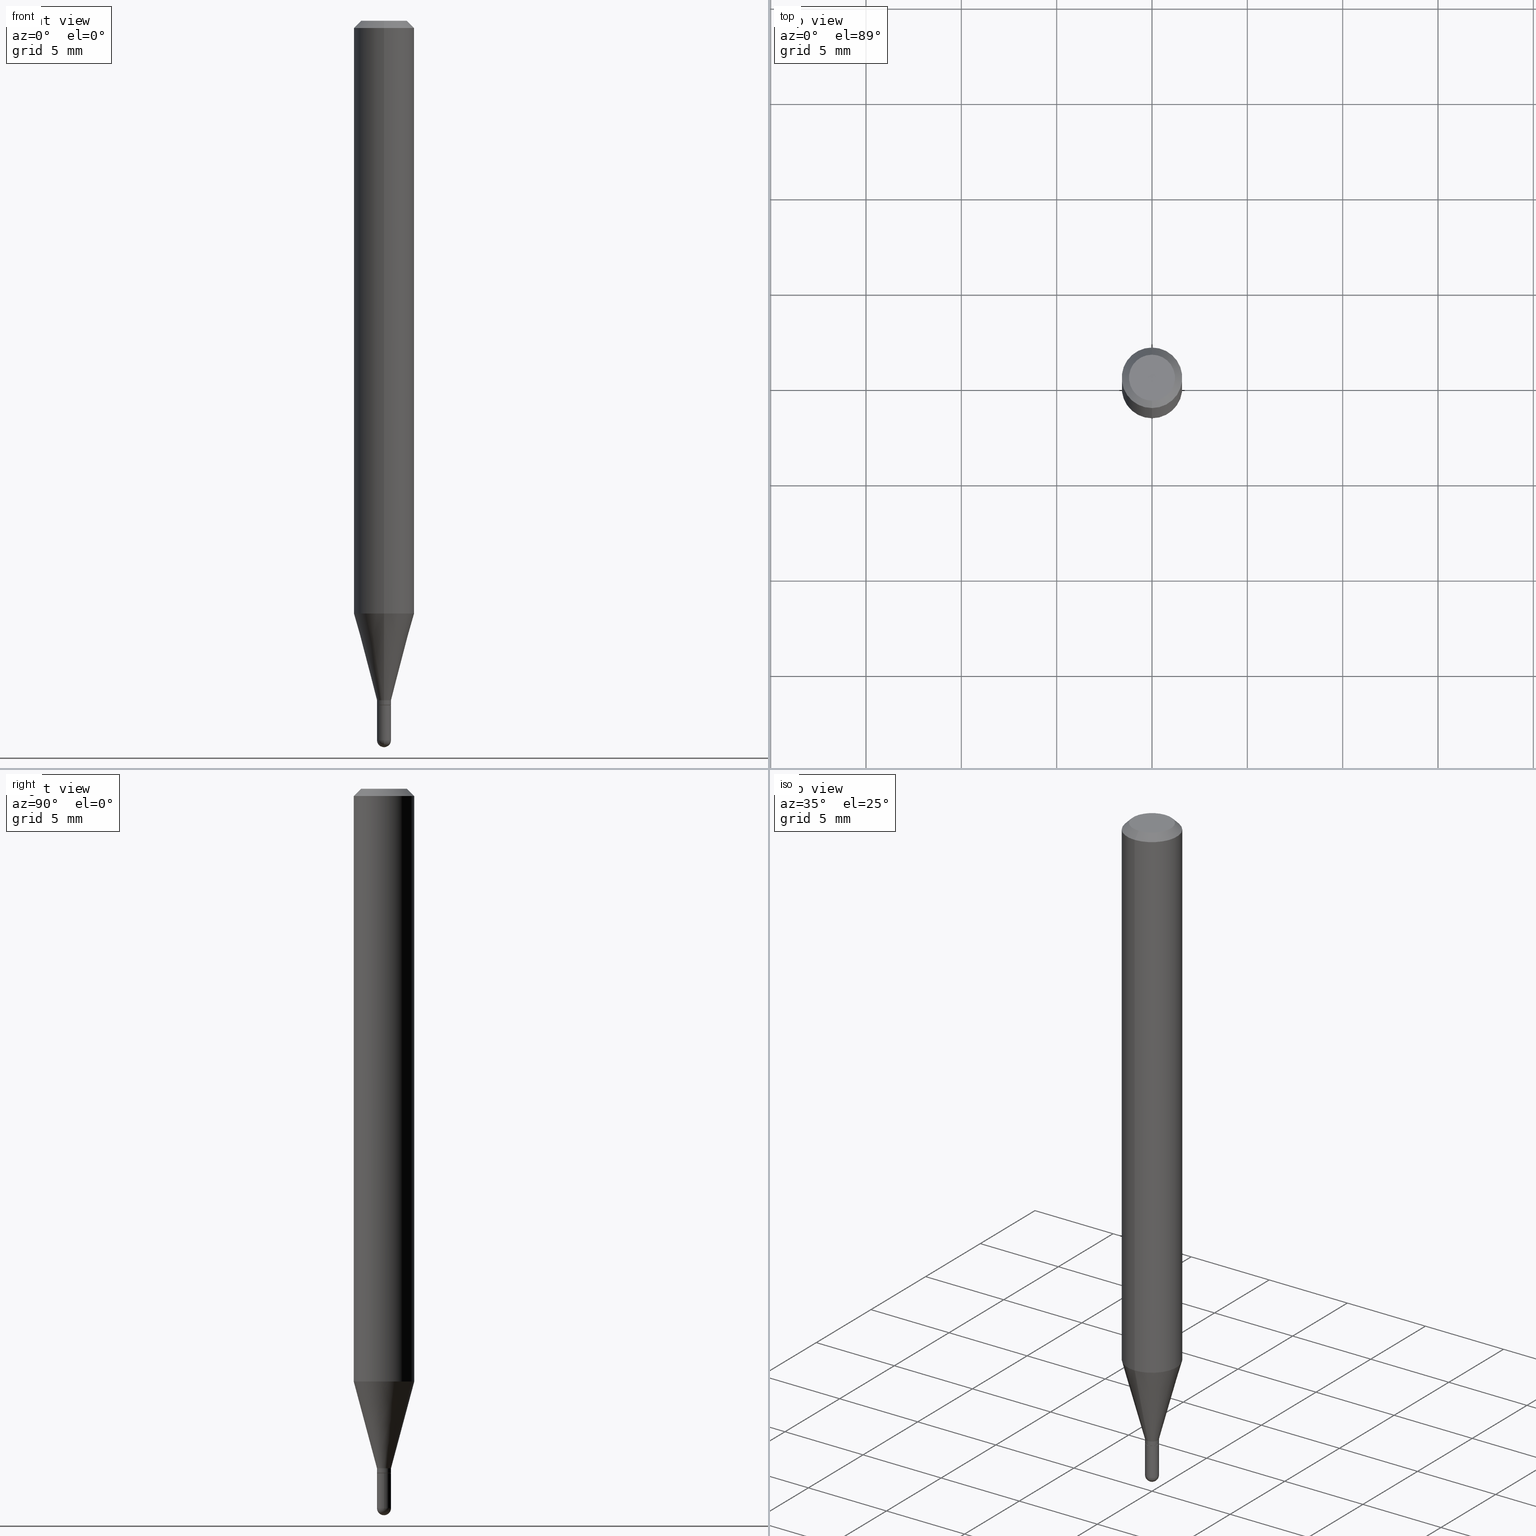
[diagram: canonical four-view strip — front | top / right | iso, engineering-drawing reading convention]
A machine part, canonical four-view strip (front | top / right | iso — engineering-drawing reading convention). The complete STEP part file that produces these views, byte-faithful:
ISO-10303-21;
HEADER;
FILE_DESCRIPTION (( 'STEP AP203' ),
    '1' );
FILE_NAME ('03127.STEP',
    '2024-03-08T18:16:59',
    ( '' ),
    ( '' ),
    'SwSTEP 2.0',
    'SolidWorks 2023',
    '' );
FILE_SCHEMA (( 'CONFIG_CONTROL_DESIGN' ));
ENDSEC;

DATA;
#1 = CARTESIAN_POINT ( 'NONE',  ( -5.856610115379453256E-45, 8.361780120346629155E-31, 2.394895667340546181E-16 ) ) ;
#2 = AXIS2_PLACEMENT_3D ( 'NONE', #249, #333, #133 ) ;
#3 = VECTOR ( 'NONE', #338, 39.37007874015748143 ) ;
#4 = PRODUCT_DEFINITION_SHAPE ( 'NONE', 'NONE',  #436 ) ;
#5 = EDGE_CURVE ( 'NONE', #103, #177, #171, .T. ) ;
#6 = LINE ( 'NONE', #169, #8 ) ;
#7 = DIRECTION ( 'NONE',  ( 6.982962677686265922E-15, 1.000000000000000000, -3.491500792446676840E-15 ) ) ;
#8 = VECTOR ( 'NONE', #403, 39.37007874015748143 ) ;
#9 = CC_DESIGN_APPROVAL ( #283, ( #198 ) ) ;
#10 = ORIENTED_EDGE ( 'NONE', *, *, #314, .T. ) ;
#11 = DIRECTION ( 'NONE',  ( -2.445468806185136597E-29, 3.491481338843145583E-15, 1.000000000000000000 ) ) ;
#12 = EDGE_LOOP ( 'NONE', ( #454, #10, #448, #182 ) ) ;
#13 = ADVANCED_FACE ( 'NONE', ( #350 ), #341, .T. ) ;
#14 = ORIENTED_EDGE ( 'NONE', *, *, #141, .F. ) ;
#15 = DIRECTION ( 'NONE',  ( 1.000000000000000000, -6.982962677686299054E-15, 0.000000000000000000 ) ) ;
#16 = CIRCLE ( 'NONE', #384, 0.01449999999999992441 ) ;
#17 = EDGE_LOOP ( 'NONE', ( #488, #359, #303, #256, #146 ) ) ;
#18 = CARTESIAN_POINT ( 'NONE',  ( 3.455428228412438378E-29, -4.933490619727154619E-15, -1.413000000000000256 ) ) ;
#19 = EDGE_LOOP ( 'NONE', ( #458, #110, #168, #415 ) ) ;
#20 = EDGE_CURVE ( 'NONE', #214, #329, #111, .T. ) ;
#21 = DIRECTION ( 'NONE',  ( 1.000000000000000000, -6.982962677686299054E-15, 0.000000000000000000 ) ) ;
#22 = DIRECTION ( 'NONE',  ( -2.445455221806396533E-29, 3.491500792446676445E-15, 1.000000000000000000 ) ) ;
#23 = VERTEX_POINT ( 'NONE', #24 ) ;
#24 = CARTESIAN_POINT ( 'NONE',  ( -1.012529588264160223E-16, -0.01450000000000482153, -1.402999999999999803 ) ) ;
#25 = DIRECTION ( 'NONE',  ( -6.982962677686265922E-15, -1.000000000000000000, 3.483106191921935554E-15 ) ) ;
#26 = VECTOR ( 'NONE', #251, 39.37007874015748143 ) ;
#27 = CARTESIAN_POINT ( 'NONE',  ( 3.632743911588020939E-29, -5.186595528851492996E-15, -1.485500000000000043 ) ) ;
#28 = DATE_AND_TIME ( #42, #167 ) ;
#29 = CC_DESIGN_PERSON_AND_ORGANIZATION_ASSIGNMENT ( #388, #460, ( #436 ) ) ;
#30 = DIRECTION ( 'NONE',  ( -6.982962677686265922E-15, -1.000000000000000000, 0.000000000000000000 ) ) ;
#31 = DIRECTION ( 'NONE',  ( -2.445455221806396533E-29, 3.491500792446676445E-15, 1.000000000000000000 ) ) ;
#32 = COORDINATED_UNIVERSAL_TIME_OFFSET ( 5, 0, .BEHIND. ) ;
#33 = DIRECTION ( 'NONE',  ( -6.982962677686265922E-15, -1.000000000000000000, 3.491500792446676445E-15 ) ) ;
#34 = CARTESIAN_POINT ( 'NONE',  ( 4.440892098500927901E-16, 0.06249999999999995837, -0.01499999999999997863 ) ) ;
#35 = PERSON_AND_ORGANIZATION ( #343, #149 ) ;
#36 = DIRECTION ( 'NONE',  ( -2.445455221806396533E-29, 3.491500792446676445E-15, 1.000000000000000000 ) ) ;
#37 = CARTESIAN_POINT ( 'NONE',  ( 3.631503920468710854E-29, -5.188371266710256857E-15, -1.485500000000000043 ) ) ;
#38 = ADVANCED_FACE ( 'NONE', ( #501 ), #500, .T. ) ;
#39 = CARTESIAN_POINT ( 'NONE',  ( 3.430973676194374138E-29, -4.898575611802686813E-15, -1.402999999999999803 ) ) ;
#40 = AXIS2_PLACEMENT_3D ( 'NONE', #27, #191, #21 ) ;
#41 = SPHERICAL_SURFACE ( 'NONE', #173, 0.01449999999999990186 ) ;
#42 = CALENDAR_DATE ( 2024, 8, 3 ) ;
#43 = CIRCLE ( 'NONE', #178, 0.01450000000000000074 ) ;
#44 = DIRECTION ( 'NONE',  ( -2.445455221806396533E-29, 3.491500792446676445E-15, 1.000000000000000000 ) ) ;
#45 = ORIENTED_EDGE ( 'NONE', *, *, #288, .F. ) ;
#46 = DIRECTION ( 'NONE',  ( -2.445468806185136597E-29, 3.491481338843145583E-15, 1.000000000000000000 ) ) ;
#47 = AXIS2_PLACEMENT_3D ( 'NONE', #339, #495, #503 ) ;
#48 = AXIS2_PLACEMENT_3D ( 'NONE', #398, #44, #476 ) ;
#49 = ADVANCED_FACE ( 'NONE', ( #389 ), #62, .T. ) ;
#50 = DIRECTION ( 'NONE',  ( -6.982962677686266711E-15, -1.000000000000000000, 3.491500792446677234E-15 ) ) ;
#51 = ORIENTED_EDGE ( 'NONE', *, *, #231, .F. ) ;
#52 = CARTESIAN_POINT ( 'NONE',  ( -0.01450000000000000074, -4.957000633633214635E-15, -1.413000000000000256 ) ) ;
#53 = ORIENTED_EDGE ( 'NONE', *, *, #176, .F. ) ;
#54 = ADVANCED_FACE ( 'NONE', ( #154 ), #505, .T. ) ;
#55 = CARTESIAN_POINT ( 'NONE',  ( -9.776147748757317543E-17, -0.01400000000000493558, -1.413000000000000256 ) ) ;
#56 = AXIS2_PLACEMENT_3D ( 'NONE', #18, #453, #194 ) ;
#57 = DIMENSIONAL_EXPONENTS ( 1.000000000000000000, 0.000000000000000000, 0.000000000000000000, 0.000000000000000000, 0.000000000000000000, 0.000000000000000000, 0.000000000000000000 ) ;
#58 = CIRCLE ( 'NONE', #290, 0.01450000000000000074 ) ;
#59 = LINE ( 'NONE', #135, #26 ) ;
#60 = ORIENTED_EDGE ( 'NONE', *, *, #362, .T. ) ;
#61 = EDGE_CURVE ( 'NONE', #499, #103, #108, .T. ) ;
#62 = CONICAL_SURFACE ( 'NONE', #148, 0.06250000000000000000, 0.7853981633974483900 ) ;
#63 = FACE_OUTER_BOUND ( 'NONE', #422, .T. ) ;
#64 = AXIS2_PLACEMENT_3D ( 'NONE', #319, #31, #125 ) ;
#65 = ORIENTED_EDGE ( 'NONE', *, *, #293, .F. ) ;
#66 = ORIENTED_EDGE ( 'NONE', *, *, #104, .T. ) ;
#67 = SPHERICAL_SURFACE ( 'NONE', #87, 0.01449999999999990186 ) ;
#68 = CARTESIAN_POINT ( 'NONE',  ( -4.364351673553916201E-16, -0.06250000000000000000, 2.182187995279172778E-16 ) ) ;
#69 = VERTEX_POINT ( 'NONE', #312 ) ;
#70 = ORIENTED_EDGE ( 'NONE', *, *, #20, .F. ) ;
#71 = DIRECTION ( 'NONE',  ( -2.445468806185136597E-29, 3.491481338843145583E-15, 1.000000000000000000 ) ) ;
#72 = EDGE_LOOP ( 'NONE', ( #334, #184, #375, #51 ) ) ;
#73 = PERSON_AND_ORGANIZATION ( #343, #149 ) ;
#74 = ADVANCED_BREP_SHAPE_REPRESENTATION ( '03127', ( #88, #254, #335 ), #356 ) ;
#75 = LINE ( 'NONE', #229, #166 ) ;
#76 = APPROVAL_PERSON_ORGANIZATION ( #73, #347, #79 ) ;
#77 = DIRECTION ( 'NONE',  ( 1.000000000000000000, 0.000000000000000000, 0.000000000000000000 ) ) ;
#78 = DIRECTION ( 'NONE',  ( -6.982962677686265922E-15, -1.000000000000000000, 0.000000000000000000 ) ) ;
#79 = APPROVAL_ROLE ( '' ) ;
#80 = CARTESIAN_POINT ( 'NONE',  ( 3.632743911588020939E-29, -5.186595528851492996E-15, -1.485500000000000043 ) ) ;
#81 = DIRECTION ( 'NONE',  ( 1.000000000000000000, -6.982962677686299054E-15, 0.000000000000000000 ) ) ;
#82 = CC_DESIGN_PERSON_AND_ORGANIZATION_ASSIGNMENT ( #195, #230, ( #90 ) ) ;
#83 = CARTESIAN_POINT ( 'NONE',  ( 3.631503920468710854E-29, -5.188371266710256857E-15, -1.485500000000000043 ) ) ;
#84 = CIRCLE ( 'NONE', #227, 0.06250000000000000000 ) ;
#85 = AXIS2_PLACEMENT_3D ( 'NONE', #328, #485, #102 ) ;
#86 = COORDINATED_UNIVERSAL_TIME_OFFSET ( 5, 0, .BEHIND. ) ;
#87 = AXIS2_PLACEMENT_3D ( 'NONE', #83, #89, #201 ) ;
#88 = MANIFOLD_SOLID_BREP ( 'Body-Move/Copy2[1]', #205 ) ;
#89 = DIRECTION ( 'NONE',  ( 1.000000000000000000, -6.982962677686265922E-15, 4.883557194083112340E-29 ) ) ;
#90 = PRODUCT ( '03127', '03127', '', ( #225 ) ) ;
#91 = CC_DESIGN_DATE_AND_TIME_ASSIGNMENT ( #28, #233, ( #436 ) ) ;
#92 = EDGE_LOOP ( 'NONE', ( #155, #180, #250, #411 ) ) ;
#93 = AXIS2_PLACEMENT_3D ( 'NONE', #137, #291, #95 ) ;
#94 =( NAMED_UNIT ( * ) PLANE_ANGLE_UNIT ( ) SI_UNIT ( $, .RADIAN. ) );
#95 = DIRECTION ( 'NONE',  ( -6.982962677686266711E-15, -1.000000000000000000, 3.491500792446677234E-15 ) ) ;
#96 = EDGE_CURVE ( 'NONE', #243, #23, #190, .T. ) ;
#97 = CARTESIAN_POINT ( 'NONE',  ( 4.440892098500922971E-16, 0.06249999999999571176, -1.223861561236694540 ) ) ;
#98 = CARTESIAN_POINT ( 'NONE',  ( 1.030286966852481820E-16, 0.01449999999999494402, -1.412500000000000311 ) ) ;
#99 = FACE_OUTER_BOUND ( 'NONE', #324, .T. ) ;
#100 = CIRCLE ( 'NONE', #382, 0.01449999999999990186 ) ;
#101 = VERTEX_POINT ( 'NONE', #498 ) ;
#102 = DIRECTION ( 'NONE',  ( -6.982962677686265922E-15, -1.000000000000000000, 3.491500792446676445E-15 ) ) ;
#103 = VERTEX_POINT ( 'NONE', #336 ) ;
#104 = EDGE_CURVE ( 'NONE', #365, #281, #284, .T. ) ;
#105 = DIRECTION ( 'NONE',  ( 2.445455221806396533E-29, -3.491500792446676445E-15, -1.000000000000000000 ) ) ;
#106 = EDGE_LOOP ( 'NONE', ( #70, #113, #377, #463 ) ) ;
#107 = CLOSED_SHELL ( 'NONE', ( #54, #129, #49, #213, #203, #38, #13, #207, #235, #301, #410, #161 ) ) ;
#108 = CIRCLE ( 'NONE', #363, 0.01450000000000000074 ) ;
#109 = DIRECTION ( 'NONE',  ( 1.000000000000000000, -6.982962677686266711E-15, 4.876176775795935793E-29 ) ) ;
#110 = ORIENTED_EDGE ( 'NONE', *, *, #20, .T. ) ;
#111 = LINE ( 'NONE', #261, #289 ) ;
#112 = DIRECTION ( 'NONE',  ( -2.445468806185136597E-29, 3.491481338843145583E-15, 1.000000000000000000 ) ) ;
#113 = ORIENTED_EDGE ( 'NONE', *, *, #397, .T. ) ;
#114 = FACE_OUTER_BOUND ( 'NONE', #17, .T. ) ;
#115 = ORIENTED_EDGE ( 'NONE', *, *, #288, .T. ) ;
#116 = LINE ( 'NONE', #352, #304 ) ;
#117 = ORIENTED_EDGE ( 'NONE', *, *, #475, .T. ) ;
#118 = AXIS2_PLACEMENT_3D ( 'NONE', #37, #425, #380 ) ;
#119 = DIRECTION ( 'NONE',  ( -2.445455221806396533E-29, 3.491500792446676445E-15, 1.000000000000000000 ) ) ;
#120 = CARTESIAN_POINT ( 'NONE',  ( 3.631503920468710854E-29, -5.188371266710256857E-15, -1.485500000000000043 ) ) ;
#121 = CALENDAR_DATE ( 2024, 8, 3 ) ;
#122 = DIRECTION ( 'NONE',  ( -6.982962677686265922E-15, -1.000000000000000000, 4.370956789862821150E-15 ) ) ;
#123 = COORDINATED_UNIVERSAL_TIME_OFFSET ( 5, 0, .BEHIND. ) ;
#124 = ADVANCED_FACE ( 'NONE', ( #185 ), #302, .T. ) ;
#125 = DIRECTION ( 'NONE',  ( -6.982962677686265922E-15, -1.000000000000000000, 0.000000000000000000 ) ) ;
#126 = COORDINATED_UNIVERSAL_TIME_OFFSET ( 5, 0, .BEHIND. ) ;
#127 = VECTOR ( 'NONE', #417, 39.37007874015748143 ) ;
#128 = CC_DESIGN_APPROVAL ( #404, ( #160 ) ) ;
#129 = ADVANCED_FACE ( 'NONE', ( #260 ), #399, .T. ) ;
#130 = ORIENTED_EDGE ( 'NONE', *, *, #165, .F. ) ;
#131 = VERTEX_POINT ( 'NONE', #307 ) ;
#132 = AXIS2_PLACEMENT_3D ( 'NONE', #224, #22, #30 ) ;
#133 = DIRECTION ( 'NONE',  ( -6.982962677686265922E-15, -1.000000000000000000, 3.491500792446676840E-15 ) ) ;
#134 = LOCAL_TIME ( 13, 16, 59.00000000000000000, #86 ) ;
#135 = CARTESIAN_POINT ( 'NONE',  ( 4.364351673553919652E-16, 0.06249999999999995143, -0.01499999999999997863 ) ) ;
#136 = PLANE ( 'NONE',  #406 ) ;
#137 = CARTESIAN_POINT ( 'NONE',  ( -5.856610115379453256E-45, 8.361780120346629155E-31, 2.394895667340546181E-16 ) ) ;
#138 = EDGE_LOOP ( 'NONE', ( #115, #245 ) ) ;
#139 = AXIS2_PLACEMENT_3D ( 'NONE', #449, #105, #253 ) ;
#140 = ORIENTED_EDGE ( 'NONE', *, *, #61, .F. ) ;
#141 = EDGE_CURVE ( 'NONE', #243, #214, #434, .T. ) ;
#142 = DIRECTION ( 'NONE',  ( -2.445455221806396533E-29, 3.491500792446676445E-15, 1.000000000000000000 ) ) ;
#143 = ORIENTED_EDGE ( 'NONE', *, *, #418, .F. ) ;
#144 = FACE_OUTER_BOUND ( 'NONE', #222, .T. ) ;
#145 = CARTESIAN_POINT ( 'NONE',  ( 3.668182832709536593E-31, -5.237251188669931123E-17, -0.01499999999999976179 ) ) ;
#146 = ORIENTED_EDGE ( 'NONE', *, *, #512, .F. ) ;
#147 = EDGE_CURVE ( 'NONE', #413, #221, #369, .T. ) ;
#148 = AXIS2_PLACEMENT_3D ( 'NONE', #226, #262, #351 ) ;
#149 = ORGANIZATION ( 'UNSPECIFIED', 'UNSPECIFIED', '' ) ;
#150 = DIRECTION ( 'NONE',  ( -2.445455221806396533E-29, 3.491500792446676445E-15, 1.000000000000000000 ) ) ;
#151 = CIRCLE ( 'NONE', #118, 0.01449999999999990186 ) ;
#152 = VERTEX_POINT ( 'NONE', #457 ) ;
#153 = DIRECTION ( 'NONE',  ( -2.445468806185136597E-29, 3.491481338843145583E-15, 1.000000000000000000 ) ) ;
#154 = FACE_OUTER_BOUND ( 'NONE', #19, .T. ) ;
#155 = ORIENTED_EDGE ( 'NONE', *, *, #357, .F. ) ;
#156 = CARTESIAN_POINT ( 'NONE',  ( 2.992898645694403006E-29, -4.273113610902943475E-15, -1.223861561236694095 ) ) ;
#157 = ORIENTED_EDGE ( 'NONE', *, *, #246, .T. ) ;
#158 = SECURITY_CLASSIFICATION_LEVEL ( 'unclassified' ) ;
#159 = AXIS2_PLACEMENT_3D ( 'NONE', #459, #193, #424 ) ;
#160 = PRODUCT_DEFINITION_FORMATION_WITH_SPECIFIED_SOURCE ( 'ANY', '', #90, .NOT_KNOWN. ) ;
#161 = ADVANCED_FACE ( 'NONE', ( #373 ), #342, .T. ) ;
#162 = CARTESIAN_POINT ( 'NONE',  ( 1.012529588264854174E-16, 0.01449999999999506545, -1.413000000000000256 ) ) ;
#163 = APPLICATION_PROTOCOL_DEFINITION ( 'international standard', 'config_control_design', 1994, #452 ) ;
#164 = DATE_AND_TIME ( #511, #483 ) ;
#165 = EDGE_CURVE ( 'NONE', #221, #281, #421, .T. ) ;
#166 = VECTOR ( 'NONE', #386, 39.37007874015748143 ) ;
#167 = LOCAL_TIME ( 13, 16, 59.00000000000000000, #393 ) ;
#168 = ORIENTED_EDGE ( 'NONE', *, *, #446, .F. ) ;
#169 = CARTESIAN_POINT ( 'NONE',  ( -0.01450000000000000074, 1.030286966852145322E-16, -7.132455880869613131E-31 ) ) ;
#170 = ORIENTED_EDGE ( 'NONE', *, *, #5, .F. ) ;
#171 = CIRCLE ( 'NONE', #40, 0.01450000000000000074 ) ;
#172 = EDGE_CURVE ( 'NONE', #101, #499, #238, .T. ) ;
#173 = AXIS2_PLACEMENT_3D ( 'NONE', #120, #275, #78 ) ;
#174 = DIRECTION ( 'NONE',  ( 2.445455221806395692E-29, -3.491500792446676840E-15, -1.000000000000000000 ) ) ;
#175 = CARTESIAN_POINT ( 'NONE',  ( 3.455447423139598357E-29, -4.933463131785365512E-15, -1.413000000000000256 ) ) ;
#176 = EDGE_CURVE ( 'NONE', #101, #215, #116, .T. ) ;
#177 = VERTEX_POINT ( 'NONE', #269 ) ;
#178 = AXIS2_PLACEMENT_3D ( 'NONE', #278, #153, #81 ) ;
#179 = DIRECTION ( 'NONE',  ( -2.445455221806396533E-29, 3.491500792446676840E-15, 1.000000000000000000 ) ) ;
#180 = ORIENTED_EDGE ( 'NONE', *, *, #147, .T. ) ;
#181 = DIRECTION ( 'NONE',  ( -6.982962677686265922E-15, -1.000000000000000000, 0.000000000000000000 ) ) ;
#182 = ORIENTED_EDGE ( 'NONE', *, *, #397, .F. ) ;
#183 = CC_DESIGN_DATE_AND_TIME_ASSIGNMENT ( #200, #310, ( #198 ) ) ;
#184 = ORIENTED_EDGE ( 'NONE', *, *, #441, .T. ) ;
#185 = FACE_OUTER_BOUND ( 'NONE', #210, .T. ) ;
#186 = ORIENTED_EDGE ( 'NONE', *, *, #431, .T. ) ;
#187 = VECTOR ( 'NONE', #370, 39.37007874015748143 ) ;
#188 = LINE ( 'NONE', #465, #3 ) ;
#189 = CONICAL_SURFACE ( 'NONE', #400, 0.01400000000000000203, 0.7853981633974739252 ) ;
#190 = LINE ( 'NONE', #376, #438 ) ;
#191 = DIRECTION ( 'NONE',  ( -2.445468806185136597E-29, 3.491481338843145583E-15, 1.000000000000000000 ) ) ;
#192 = APPROVAL_STATUS ( 'not_yet_approved' ) ;
#193 = DIRECTION ( 'NONE',  ( -2.445455221806396533E-29, 3.491500792446676445E-15, 1.000000000000000000 ) ) ;
#194 = DIRECTION ( 'NONE',  ( -6.982962677686265922E-15, -1.000000000000000000, 0.000000000000000000 ) ) ;
#195 = PERSON_AND_ORGANIZATION ( #343, #149 ) ;
#196 = EDGE_CURVE ( 'NONE', #131, #214, #75, .T. ) ;
#197 = CALENDAR_DATE ( 2024, 8, 3 ) ;
#198 = SECURITY_CLASSIFICATION ( '', '', #158 ) ;
#199 = DIRECTION ( 'NONE',  ( -1.000000000000000000, 6.982962677686265922E-15, -4.876176775795935793E-29 ) ) ;
#200 = DATE_AND_TIME ( #197, #439 ) ;
#201 = DIRECTION ( 'NONE',  ( -6.982962677686265922E-15, -1.000000000000000000, 0.000000000000000000 ) ) ;
#202 = PERSON_AND_ORGANIZATION ( #343, #149 ) ;
#203 = ADVANCED_FACE ( 'NONE', ( #506 ), #394, .T. ) ;
#204 = DIRECTION ( 'NONE',  ( 1.000000000000000000, -6.982962677686299054E-15, 0.000000000000000000 ) ) ;
#205 = CLOSED_SHELL ( 'NONE', ( #124, #378, #487, #480, #330 ) ) ;
#206 = FACE_OUTER_BOUND ( 'NONE', #12, .T. ) ;
#207 = ADVANCED_FACE ( 'NONE', ( #298 ), #306, .T. ) ;
#208 = VERTEX_POINT ( 'NONE', #412 ) ;
#209 = CARTESIAN_POINT ( 'NONE',  ( -4.364351673553617913E-16, -0.06250000000000427436, -1.223861561236693873 ) ) ;
#210 = EDGE_LOOP ( 'NONE', ( #212, #157, #45, #53, #252 ) ) ;
#211 = CARTESIAN_POINT ( 'NONE',  ( -1.012529588264160223E-16, -0.01450000000000482153, -1.402999999999999803 ) ) ;
#212 = ORIENTED_EDGE ( 'NONE', *, *, #61, .T. ) ;
#213 = ADVANCED_FACE ( 'NONE', ( #63 ), #368, .T. ) ;
#214 = VERTEX_POINT ( 'NONE', #98 ) ;
#215 = VERTEX_POINT ( 'NONE', #407 ) ;
#216 = ORIENTED_EDGE ( 'NONE', *, *, #392, .T. ) ;
#217 = DIRECTION ( 'NONE',  ( -6.982962677686265922E-15, -1.000000000000000000, 4.370956789862821150E-15 ) ) ;
#218 = ORIENTED_EDGE ( 'NONE', *, *, #242, .F. ) ;
#219 = ORIENTED_EDGE ( 'NONE', *, *, #357, .T. ) ;
#220 = CARTESIAN_POINT ( 'NONE',  ( 3.632743911588020939E-29, -5.186595528851492996E-15, -1.485500000000000043 ) ) ;
#221 = VERTEX_POINT ( 'NONE', #209 ) ;
#222 = EDGE_LOOP ( 'NONE', ( #65, #60, #445, #143 ) ) ;
#223 = LINE ( 'NONE', #277, #274 ) ;
#224 = CARTESIAN_POINT ( 'NONE',  ( 3.454205500801535642E-29, -4.931744869330931426E-15, -1.412500000000000311 ) ) ;
#225 = MECHANICAL_CONTEXT ( 'NONE', #452, 'mechanical' ) ;
#226 = CARTESIAN_POINT ( 'NONE',  ( 3.668182832709536593E-31, -5.237251188669931123E-17, -0.01499999999999976179 ) ) ;
#227 = AXIS2_PLACEMENT_3D ( 'NONE', #240, #440, #371 ) ;
#228 = CIRCLE ( 'NONE', #48, 0.01449999999999992614 ) ;
#229 = CARTESIAN_POINT ( 'NONE',  ( 9.947598300644857774E-17, 0.01399999999999506674, -1.413000000000000256 ) ) ;
#230 = PERSON_AND_ORGANIZATION_ROLE ( 'design_owner' ) ;
#231 = EDGE_CURVE ( 'NONE', #23, #221, #292, .T. ) ;
#232 = FACE_OUTER_BOUND ( 'NONE', #138, .T. ) ;
#233 = DATE_TIME_ROLE ( 'creation_date' ) ;
#234 = LINE ( 'NONE', #390, #321 ) ;
#235 = ADVANCED_FACE ( 'NONE', ( #437 ), #136, .F. ) ;
#236 = CARTESIAN_POINT ( 'NONE',  ( 0.000000000000000000, 0.000000000000000000, 0.000000000000000000 ) ) ;
#237 = CARTESIAN_POINT ( 'NONE',  ( 3.455428228412438378E-29, -4.933490619727154619E-15, -1.413000000000000256 ) ) ;
#238 = CIRCLE ( 'NONE', #326, 0.01450000000000000074 ) ;
#239 = EDGE_LOOP ( 'NONE', ( #300, #117, #311, #426 ) ) ;
#240 = CARTESIAN_POINT ( 'NONE',  ( 3.668182832709536593E-31, -5.237251188669931123E-17, -0.01499999999999976179 ) ) ;
#241 = ORIENTED_EDGE ( 'NONE', *, *, #293, .T. ) ;
#242 = EDGE_CURVE ( 'NONE', #372, #365, #59, .T. ) ;
#243 = VERTEX_POINT ( 'NONE', #366 ) ;
#244 = CARTESIAN_POINT ( 'NONE',  ( 2.735589532676705169E-16, 0.01449999999999502555, -1.402999999999999803 ) ) ;
#245 = ORIENTED_EDGE ( 'NONE', *, *, #512, .T. ) ;
#246 = EDGE_CURVE ( 'NONE', #103, #309, #6, .T. ) ;
#247 = AXIS2_PLACEMENT_3D ( 'NONE', #264, #348, #109 ) ;
#248 = APPROVAL_PERSON_ORGANIZATION ( #202, #283, #282 ) ;
#249 = CARTESIAN_POINT ( 'NONE',  ( 3.455428228412438378E-29, -4.933490619727154619E-15, -1.413000000000000256 ) ) ;
#250 = ORIENTED_EDGE ( 'NONE', *, *, #165, .T. ) ;
#251 = DIRECTION ( 'NONE',  ( 4.937700262164548042E-15, 0.7071067811865451302, -0.7071067811865499042 ) ) ;
#252 = ORIENTED_EDGE ( 'NONE', *, *, #172, .T. ) ;
#253 = DIRECTION ( 'NONE',  ( 6.982962677686265922E-15, 1.000000000000000000, -3.483106191921935554E-15 ) ) ;
#254 = MANIFOLD_SOLID_BREP ( 'Body-Move/Copy2[2]', #107 ) ;
#255 = ORIENTED_EDGE ( 'NONE', *, *, #196, .T. ) ;
#256 = ORIENTED_EDGE ( 'NONE', *, *, #176, .T. ) ;
#257 = AXIS2_PLACEMENT_3D ( 'NONE', #145, #150, #25 ) ;
#258 = DIRECTION ( 'NONE',  ( -2.445455221806396533E-29, 3.491500792446676840E-15, 1.000000000000000000 ) ) ;
#259 = EDGE_CURVE ( 'NONE', #281, #365, #84, .T. ) ;
#260 = FACE_OUTER_BOUND ( 'NONE', #340, .T. ) ;
#261 = CARTESIAN_POINT ( 'NONE',  ( 1.030286966852139652E-16, 0.01449999999999992441, -5.062676149047654340E-17 ) ) ;
#262 = DIRECTION ( 'NONE',  ( 2.445455221806396533E-29, -3.491500792446676445E-15, -1.000000000000000000 ) ) ;
#263 = CARTESIAN_POINT ( 'NONE',  ( 2.992898645694403006E-29, -4.273113610902943475E-15, -1.223861561236694095 ) ) ;
#264 = CARTESIAN_POINT ( 'NONE',  ( 0.000000000000000000, 0.000000000000000000, 0.000000000000000000 ) ) ;
#265 = EDGE_LOOP ( 'NONE', ( #461, #419, #313, #66 ) ) ;
#266 = LENGTH_MEASURE_WITH_UNIT ( LENGTH_MEASURE( 0.02539999999999999897 ), #474 );
#267 = PERSON_AND_ORGANIZATION ( #343, #149 ) ;
#268 = ORIENTED_EDGE ( 'NONE', *, *, #323, .F. ) ;
#269 = CARTESIAN_POINT ( 'NONE',  ( -1.012529588264141858E-16, -0.01450000000000514072, -1.485500000000000043 ) ) ;
#270 = EDGE_CURVE ( 'NONE', #152, #243, #442, .T. ) ;
#271 = CALENDAR_DATE ( 2024, 8, 3 ) ;
#272 = CARTESIAN_POINT ( 'NONE',  ( 0.000000000000000000, 0.000000000000000000, 0.000000000000000000 ) ) ;
#273 = AXIS2_PLACEMENT_3D ( 'NONE', #496, #456, #346 ) ;
#274 = VECTOR ( 'NONE', #258, 39.37007874015748143 ) ;
#275 = DIRECTION ( 'NONE',  ( 1.000000000000000000, -6.982962677686265922E-15, 4.883557194083112340E-29 ) ) ;
#276 = PERSON_AND_ORGANIZATION_ROLE ( 'classification_officer' ) ;
#277 = CARTESIAN_POINT ( 'NONE',  ( 4.440892098500625669E-16, 0.06250000000000000000, -2.182187995279172778E-16 ) ) ;
#278 = CARTESIAN_POINT ( 'NONE',  ( 3.632743911588020939E-29, -5.186595528851492996E-15, -1.485500000000000043 ) ) ;
#279 = APPROVAL_DATE_TIME ( #383, #347 ) ;
#280 = CC_DESIGN_PERSON_AND_ORGANIZATION_ASSIGNMENT ( #468, #276, ( #198 ) ) ;
#281 = VERTEX_POINT ( 'NONE', #447 ) ;
#282 = APPROVAL_ROLE ( '' ) ;
#283 = APPROVAL ( #192, 'UNSPECIFIED' ) ;
#284 = CIRCLE ( 'NONE', #257, 0.06250000000000000000 ) ;
#285 = CIRCLE ( 'NONE', #64, 0.01449999999999992441 ) ;
#286 = CARTESIAN_POINT ( 'NONE',  ( 3.455447423139598357E-29, -4.933463131785365512E-15, -1.413000000000000256 ) ) ;
#287 = CARTESIAN_POINT ( 'NONE',  ( 1.030286966852504993E-16, 0.01449999999999476361, -1.485500000000000043 ) ) ;
#288 = EDGE_CURVE ( 'NONE', #215, #309, #478, .T. ) ;
#289 = VECTOR ( 'NONE', #379, 39.37007874015748143 ) ;
#290 = AXIS2_PLACEMENT_3D ( 'NONE', #286, #46, #204 ) ;
#291 = DIRECTION ( 'NONE',  ( -2.445455221806396533E-29, 3.491500792446676445E-15, 1.000000000000000000 ) ) ;
#292 = LINE ( 'NONE', #211, #490 ) ;
#293 = EDGE_CURVE ( 'NONE', #69, #177, #100, .T. ) ;
#294 = DIRECTION ( 'NONE',  ( -1.000000000000000000, 6.982962677686265922E-15, -4.883557194083112340E-29 ) ) ;
#295 = CIRCLE ( 'NONE', #467, 0.01400000000000000203 ) ;
#296 = AXIS2_PLACEMENT_3D ( 'NONE', #387, #405, #360 ) ;
#297 = DIRECTION ( 'NONE',  ( -1.807323732225331717E-15, -0.2588190451025184080, 0.9659258262890689783 ) ) ;
#298 = FACE_OUTER_BOUND ( 'NONE', #265, .T. ) ;
#299 = ORIENTED_EDGE ( 'NONE', *, *, #367, .T. ) ;
#300 = ORIENTED_EDGE ( 'NONE', *, *, #441, .F. ) ;
#301 = ADVANCED_FACE ( 'NONE', ( #99 ), #402, .F. ) ;
#302 = CYLINDRICAL_SURFACE ( 'NONE', #247, 0.01450000000000000074 ) ;
#303 = ORIENTED_EDGE ( 'NONE', *, *, #418, .T. ) ;
#304 = VECTOR ( 'NONE', #381, 39.37007874015748143 ) ;
#305 = ORIENTED_EDGE ( 'NONE', *, *, #362, .F. ) ;
#306 = CONICAL_SURFACE ( 'NONE', #139, 0.06250000000000000000, 0.7853981633974483900 ) ;
#307 = CARTESIAN_POINT ( 'NONE',  ( 1.012523398458485463E-16, 0.01399999999999506674, -1.413000000000000256 ) ) ;
#308 = EDGE_LOOP ( 'NONE', ( #305, #241, #170, #140 ) ) ;
#309 = VERTEX_POINT ( 'NONE', #52 ) ;
#310 = DATE_TIME_ROLE ( 'classification_date' ) ;
#311 = ORIENTED_EDGE ( 'NONE', *, *, #231, .T. ) ;
#312 = CARTESIAN_POINT ( 'NONE',  ( 3.666343222598739767E-29, -5.239885615052863969E-15, -1.499999999999999778 ) ) ;
#313 = ORIENTED_EDGE ( 'NONE', *, *, #242, .T. ) ;
#314 = EDGE_CURVE ( 'NONE', #131, #152, #295, .T. ) ;
#315 = CYLINDRICAL_SURFACE ( 'NONE', #509, 0.01450000000000000074 ) ;
#316 = CIRCLE ( 'NONE', #93, 0.04749999999999999362 ) ;
#317 = APPROVAL_STATUS ( 'not_yet_approved' ) ;
#318 = APPROVAL_DATE_TIME ( #164, #283 ) ;
#319 = CARTESIAN_POINT ( 'NONE',  ( 3.430973676194374138E-29, -4.898575611802686813E-15, -1.402999999999999803 ) ) ;
#320 = AXIS2_PLACEMENT_3D ( 'NONE', #175, #11, #408 ) ;
#321 = VECTOR ( 'NONE', #353, 39.37007874015748854 ) ;
#322 = DIRECTION ( 'NONE',  ( -6.982962677686265922E-15, -1.000000000000000000, 0.000000000000000000 ) ) ;
#323 = EDGE_CURVE ( 'NONE', #208, #372, #316, .T. ) ;
#324 = EDGE_LOOP ( 'NONE', ( #344, #494 ) ) ;
#325 = CARTESIAN_POINT ( 'NONE',  ( 3.455428228412438378E-29, -4.933490619727154619E-15, -1.413000000000000256 ) ) ;
#326 = AXIS2_PLACEMENT_3D ( 'NONE', #220, #71, #462 ) ;
#327 = CIRCLE ( 'NONE', #479, 0.06250000000000000000 ) ;
#328 = CARTESIAN_POINT ( 'NONE',  ( 0.000000000000000000, 0.000000000000000000, 0.000000000000000000 ) ) ;
#329 = VERTEX_POINT ( 'NONE', #244 ) ;
#330 = ADVANCED_FACE ( 'NONE', ( #114 ), #315, .T. ) ;
#331 = UNCERTAINTY_MEASURE_WITH_UNIT (LENGTH_MEASURE( 1.000000000000000082E-05 ), #423, 'distance_accuracy_value', 'NONE');
#332 = CARTESIAN_POINT ( 'NONE',  ( 3.631503920468710854E-29, -5.188371266710256857E-15, -1.485500000000000043 ) ) ;
#333 = DIRECTION ( 'NONE',  ( -2.445455221806395692E-29, 3.491500792446676840E-15, 1.000000000000000000 ) ) ;
#334 = ORIENTED_EDGE ( 'NONE', *, *, #446, .T. ) ;
#335 = AXIS2_PLACEMENT_3D ( 'NONE', #236, #433, #77 ) ;
#336 = CARTESIAN_POINT ( 'NONE',  ( -0.01450000000000000074, -4.957000633633214635E-15, -1.485500000000000043 ) ) ;
#337 = EDGE_CURVE ( 'NONE', #221, #413, #327, .T. ) ;
#338 = DIRECTION ( 'NONE',  ( -4.851104656540964275E-15, -0.7071067811865500152, -0.7071067811865450192 ) ) ;
#339 = CARTESIAN_POINT ( 'NONE',  ( 0.000000000000000000, 0.000000000000000000, 0.000000000000000000 ) ) ;
#340 = EDGE_LOOP ( 'NONE', ( #186, #255, #14, #349 ) ) ;
#341 = CYLINDRICAL_SURFACE ( 'NONE', #273, 0.06250000000000000000 ) ;
#342 = CYLINDRICAL_SURFACE ( 'NONE', #47, 0.01449999999999992441 ) ;
#343 = PERSON ( 'UNSPECIFIED', 'UNSPECIFIED', 'UNSPECIFIED', ('UNSPECIFIED'), ('UNSPECIFIED'), ('UNSPECIFIED') ) ;
#344 = ORIENTED_EDGE ( 'NONE', *, *, #431, .F. ) ;
#345 = AXIS2_PLACEMENT_3D ( 'NONE', #156, #427, #217 ) ;
#346 = DIRECTION ( 'NONE',  ( -6.982962677686265922E-15, -1.000000000000000000, 3.491500792446676445E-15 ) ) ;
#347 = APPROVAL ( #358, 'UNSPECIFIED' ) ;
#348 = DIRECTION ( 'NONE',  ( -2.445468806185136597E-29, 3.491481338843145583E-15, 1.000000000000000000 ) ) ;
#349 = ORIENTED_EDGE ( 'NONE', *, *, #270, .F. ) ;
#350 = FACE_OUTER_BOUND ( 'NONE', #92, .T. ) ;
#351 = DIRECTION ( 'NONE',  ( 6.982962677686265922E-15, 1.000000000000000000, -3.483106191921935554E-15 ) ) ;
#352 = CARTESIAN_POINT ( 'NONE',  ( 0.01450000000000000074, -1.012529588264508678E-16, 7.070456324904107110E-31 ) ) ;
#353 = DIRECTION ( 'NONE',  ( 1.839019923739601893E-15, 0.2588190451025252359, 0.9659258262890670910 ) ) ;
#354 = DATE_AND_TIME ( #271, #364 ) ;
#355 = PLANE ( 'NONE',  #455 ) ;
#356 =( GEOMETRIC_REPRESENTATION_CONTEXT ( 3 ) GLOBAL_UNCERTAINTY_ASSIGNED_CONTEXT ( ( #331 ) ) GLOBAL_UNIT_ASSIGNED_CONTEXT ( ( #423, #94, #416 ) ) REPRESENTATION_CONTEXT ( 'NONE', 'WORKASPACE' ) );
#357 = EDGE_CURVE ( 'NONE', #413, #365, #223, .T. ) ;
#358 = APPROVAL_STATUS ( 'not_yet_approved' ) ;
#359 = ORIENTED_EDGE ( 'NONE', *, *, #5, .T. ) ;
#360 = DIRECTION ( 'NONE',  ( -6.982962677686265922E-15, -1.000000000000000000, 0.000000000000000000 ) ) ;
#361 = DIRECTION ( 'NONE',  ( -2.445455221806396533E-29, 3.491500792446676445E-15, 1.000000000000000000 ) ) ;
#362 = EDGE_CURVE ( 'NONE', #69, #499, #151, .T. ) ;
#363 = AXIS2_PLACEMENT_3D ( 'NONE', #80, #510, #15 ) ;
#364 = LOCAL_TIME ( 13, 16, 59.00000000000000000, #32 ) ;
#365 = VERTEX_POINT ( 'NONE', #34 ) ;
#366 = CARTESIAN_POINT ( 'NONE',  ( -1.012529588264161333E-16, -0.01450000000000490653, -1.412500000000000311 ) ) ;
#367 = EDGE_CURVE ( 'NONE', #208, #281, #188, .T. ) ;
#368 = CYLINDRICAL_SURFACE ( 'NONE', #85, 0.06250000000000000000 ) ;
#369 = CIRCLE ( 'NONE', #345, 0.06250000000000000000 ) ;
#370 = DIRECTION ( 'NONE',  ( -4.937700262164674260E-15, -0.7071067811865632269, 0.7071067811865319186 ) ) ;
#371 = DIRECTION ( 'NONE',  ( -6.982962677686265922E-15, -1.000000000000000000, 3.483106191921935554E-15 ) ) ;
#372 = VERTEX_POINT ( 'NONE', #432 ) ;
#373 = FACE_OUTER_BOUND ( 'NONE', #106, .T. ) ;
#374 = ORIENTED_EDGE ( 'NONE', *, *, #323, .T. ) ;
#375 = ORIENTED_EDGE ( 'NONE', *, *, #337, .F. ) ;
#376 = CARTESIAN_POINT ( 'NONE',  ( -1.012529588264503255E-16, -0.01449999999999992441, 5.062676149047654340E-17 ) ) ;
#377 = ORIENTED_EDGE ( 'NONE', *, *, #96, .T. ) ;
#378 = ADVANCED_FACE ( 'NONE', ( #144 ), #67, .T. ) ;
#379 = DIRECTION ( 'NONE',  ( -2.445455221806396533E-29, 3.491500792446676840E-15, 1.000000000000000000 ) ) ;
#380 = DIRECTION ( 'NONE',  ( 7.105427357601001070E-15, 1.000000000000000000, 0.000000000000000000 ) ) ;
#381 = DIRECTION ( 'NONE',  ( -2.445468806185136877E-29, 3.491481338843145188E-15, 1.000000000000000000 ) ) ;
#382 = AXIS2_PLACEMENT_3D ( 'NONE', #332, #294, #443 ) ;
#383 = DATE_AND_TIME ( #121, #134 ) ;
#384 = AXIS2_PLACEMENT_3D ( 'NONE', #39, #119, #472 ) ;
#385 = DIRECTION ( 'NONE',  ( 1.000000000000000000, -6.982962677686266711E-15, 4.876176775795935793E-29 ) ) ;
#386 = DIRECTION ( 'NONE',  ( 5.024295867788190974E-15, 0.7071067811865681119, 0.7071067811865270336 ) ) ;
#387 = CARTESIAN_POINT ( 'NONE',  ( 3.455428228412438378E-29, -4.933490619727154619E-15, -1.413000000000000256 ) ) ;
#388 = PERSON_AND_ORGANIZATION ( #343, #149 ) ;
#389 = FACE_OUTER_BOUND ( 'NONE', #492, .T. ) ;
#390 = CARTESIAN_POINT ( 'NONE',  ( 1.030286966852482683E-16, 0.01449999999999502555, -1.402999999999999803 ) ) ;
#391 = PERSON_AND_ORGANIZATION ( #343, #149 ) ;
#392 = EDGE_CURVE ( 'NONE', #372, #208, #491, .T. ) ;
#393 = COORDINATED_UNIVERSAL_TIME_OFFSET ( 5, 0, .BEHIND. ) ;
#394 = CONICAL_SURFACE ( 'NONE', #429, 0.01449999999999992441, 0.2617993877991505181 ) ;
#395 = AXIS2_PLACEMENT_3D ( 'NONE', #1, #401, #50 ) ;
#396 = APPLICATION_CONTEXT ( 'configuration controlled 3d designs of mechanical parts and assemblies' ) ;
#397 = EDGE_CURVE ( 'NONE', #214, #243, #228, .T. ) ;
#398 = CARTESIAN_POINT ( 'NONE',  ( 3.454205500801535642E-29, -4.931744869330931426E-15, -1.412500000000000311 ) ) ;
#399 = CONICAL_SURFACE ( 'NONE', #56, 0.01400000000000000203, 0.7853981633974739252 ) ;
#400 = AXIS2_PLACEMENT_3D ( 'NONE', #237, #361, #322 ) ;
#401 = DIRECTION ( 'NONE',  ( -2.445455221806396533E-29, 3.491500792446676445E-15, 1.000000000000000000 ) ) ;
#402 = PLANE ( 'NONE',  #2 ) ;
#403 = DIRECTION ( 'NONE',  ( -2.445468806185136877E-29, 3.491481338843145188E-15, 1.000000000000000000 ) ) ;
#404 = APPROVAL ( #317, 'UNSPECIFIED' ) ;
#405 = DIRECTION ( 'NONE',  ( -2.445455221806396533E-29, 3.491500792446676445E-15, 1.000000000000000000 ) ) ;
#406 = AXIS2_PLACEMENT_3D ( 'NONE', #486, #174, #7 ) ;
#407 = CARTESIAN_POINT ( 'NONE',  ( 0.01450000000000000074, -5.034716090611816663E-15, -1.413000000000000256 ) ) ;
#408 = DIRECTION ( 'NONE',  ( 1.000000000000000000, -6.982962677686299054E-15, 0.000000000000000000 ) ) ;
#409 = ORIENTED_EDGE ( 'NONE', *, *, #259, .T. ) ;
#410 = ADVANCED_FACE ( 'NONE', ( #206 ), #189, .T. ) ;
#411 = ORIENTED_EDGE ( 'NONE', *, *, #104, .F. ) ;
#412 = CARTESIAN_POINT ( 'NONE',  ( -3.773273898774340269E-16, -0.04749999999999999362, 4.053358543752717650E-16 ) ) ;
#413 = VERTEX_POINT ( 'NONE', #97 ) ;
#414 = APPROVAL_PERSON_ORGANIZATION ( #267, #404, #508 ) ;
#415 = ORIENTED_EDGE ( 'NONE', *, *, #96, .F. ) ;
#416 =( NAMED_UNIT ( * ) SI_UNIT ( $, .STERADIAN. ) SOLID_ANGLE_UNIT ( ) );
#417 = DIRECTION ( 'NONE',  ( -2.445455221806396533E-29, 3.491500792446676840E-15, 1.000000000000000000 ) ) ;
#418 = EDGE_CURVE ( 'NONE', #177, #101, #43, .T. ) ;
#419 = ORIENTED_EDGE ( 'NONE', *, *, #392, .F. ) ;
#420 = CARTESIAN_POINT ( 'NONE',  ( 0.000000000000000000, 0.000000000000000000, 0.000000000000000000 ) ) ;
#421 = LINE ( 'NONE', #68, #127 ) ;
#422 = EDGE_LOOP ( 'NONE', ( #428, #219, #504, #130 ) ) ;
#423 =( CONVERSION_BASED_UNIT ( 'INCH', #266 ) LENGTH_UNIT ( ) NAMED_UNIT ( #57 ) );
#424 = DIRECTION ( 'NONE',  ( -6.982962677686265922E-15, -1.000000000000000000, 0.000000000000000000 ) ) ;
#425 = DIRECTION ( 'NONE',  ( 1.000000000000000000, -7.105427357601001070E-15, 4.926315508542082329E-29 ) ) ;
#426 = ORIENTED_EDGE ( 'NONE', *, *, #147, .F. ) ;
#427 = DIRECTION ( 'NONE',  ( -2.445455221806396533E-29, 3.491500792446676445E-15, 1.000000000000000000 ) ) ;
#428 = ORIENTED_EDGE ( 'NONE', *, *, #337, .T. ) ;
#429 = AXIS2_PLACEMENT_3D ( 'NONE', #493, #142, #181 ) ;
#430 = APPLICATION_PROTOCOL_DEFINITION ( 'international standard', 'config_control_design', 1994, #396 ) ;
#431 = EDGE_CURVE ( 'NONE', #152, #131, #444, .T. ) ;
#432 = CARTESIAN_POINT ( 'NONE',  ( 3.840629472727447874E-16, 0.04749999999999999362, 7.364327909283748346E-17 ) ) ;
#433 = DIRECTION ( 'NONE',  ( 0.000000000000000000, 0.000000000000000000, 1.000000000000000000 ) ) ;
#434 = CIRCLE ( 'NONE', #132, 0.01449999999999992614 ) ;
#435 = CC_DESIGN_APPROVAL ( #347, ( #436 ) ) ;
#436 = PRODUCT_DEFINITION ( 'UNKNOWN', '', #160, #484 ) ;
#437 = FACE_OUTER_BOUND ( 'NONE', #450, .T. ) ;
#438 = VECTOR ( 'NONE', #179, 39.37007874015748143 ) ;
#439 = LOCAL_TIME ( 13, 16, 59.00000000000000000, #123 ) ;
#440 = DIRECTION ( 'NONE',  ( -2.445455221806396533E-29, 3.491500792446676445E-15, 1.000000000000000000 ) ) ;
#441 = EDGE_CURVE ( 'NONE', #329, #413, #234, .T. ) ;
#442 = LINE ( 'NONE', #55, #187 ) ;
#443 = DIRECTION ( 'NONE',  ( -6.982962677686266711E-15, -1.000000000000000000, 0.000000000000000000 ) ) ;
#444 = CIRCLE ( 'NONE', #296, 0.01400000000000000203 ) ;
#445 = ORIENTED_EDGE ( 'NONE', *, *, #172, .F. ) ;
#446 = EDGE_CURVE ( 'NONE', #23, #329, #16, .T. ) ;
#447 = CARTESIAN_POINT ( 'NONE',  ( -4.364351673553912750E-16, -0.06250000000000005551, -0.01499999999999954321 ) ) ;
#448 = ORIENTED_EDGE ( 'NONE', *, *, #270, .T. ) ;
#449 = CARTESIAN_POINT ( 'NONE',  ( 3.668182832709536593E-31, -5.237251188669931123E-17, -0.01499999999999976179 ) ) ;
#450 = EDGE_LOOP ( 'NONE', ( #216, #374 ) ) ;
#451 = CC_DESIGN_PERSON_AND_ORGANIZATION_ASSIGNMENT ( #35, #507, ( #160 ) ) ;
#452 = APPLICATION_CONTEXT ( 'configuration controlled 3d designs of mechanical parts and assemblies' ) ;
#453 = DIRECTION ( 'NONE',  ( -2.445455221806396533E-29, 3.491500792446676445E-15, 1.000000000000000000 ) ) ;
#454 = ORIENTED_EDGE ( 'NONE', *, *, #196, .F. ) ;
#455 = AXIS2_PLACEMENT_3D ( 'NONE', #162, #470, #199 ) ;
#456 = DIRECTION ( 'NONE',  ( -2.445455221806396533E-29, 3.491500792446676445E-15, 1.000000000000000000 ) ) ;
#457 = CARTESIAN_POINT ( 'NONE',  ( -9.776147748757317543E-17, -0.01400000000000493558, -1.413000000000000256 ) ) ;
#458 = ORIENTED_EDGE ( 'NONE', *, *, #141, .T. ) ;
#459 = CARTESIAN_POINT ( 'NONE',  ( 3.430973676194374138E-29, -4.898575611802686813E-15, -1.402999999999999803 ) ) ;
#460 = PERSON_AND_ORGANIZATION_ROLE ( 'creator' ) ;
#461 = ORIENTED_EDGE ( 'NONE', *, *, #367, .F. ) ;
#462 = DIRECTION ( 'NONE',  ( 1.000000000000000000, -6.982962677686299054E-15, 0.000000000000000000 ) ) ;
#463 = ORIENTED_EDGE ( 'NONE', *, *, #475, .F. ) ;
#464 = PERSON_AND_ORGANIZATION_ROLE ( 'creator' ) ;
#465 = CARTESIAN_POINT ( 'NONE',  ( -4.287811248607203282E-16, -0.06250000000000005551, -0.01499999999999954321 ) ) ;
#466 = PRODUCT_RELATED_PRODUCT_CATEGORY ( 'detail', '', ( #90 ) ) ;
#467 = AXIS2_PLACEMENT_3D ( 'NONE', #325, #489, #481 ) ;
#468 = PERSON_AND_ORGANIZATION ( #343, #149 ) ;
#469 = CC_DESIGN_SECURITY_CLASSIFICATION ( #198, ( #160 ) ) ;
#470 = DIRECTION ( 'NONE',  ( 2.438088387897960049E-29, -3.491481338843145188E-15, -1.000000000000000000 ) ) ;
#471 = APPROVAL_DATE_TIME ( #354, #404 ) ;
#472 = DIRECTION ( 'NONE',  ( -6.982962677686265922E-15, -1.000000000000000000, 0.000000000000000000 ) ) ;
#473 = SHAPE_DEFINITION_REPRESENTATION ( #4, #74 ) ;
#474 =( LENGTH_UNIT ( ) NAMED_UNIT ( * ) SI_UNIT ( $, .METRE. ) );
#475 = EDGE_CURVE ( 'NONE', #329, #23, #285, .T. ) ;
#476 = DIRECTION ( 'NONE',  ( -6.982962677686265922E-15, -1.000000000000000000, 0.000000000000000000 ) ) ;
#477 = FACE_OUTER_BOUND ( 'NONE', #308, .T. ) ;
#478 = CIRCLE ( 'NONE', #320, 0.01450000000000000074 ) ;
#479 = AXIS2_PLACEMENT_3D ( 'NONE', #263, #502, #122 ) ;
#480 = ADVANCED_FACE ( 'NONE', ( #477 ), #41, .T. ) ;
#481 = DIRECTION ( 'NONE',  ( -6.982962677686265922E-15, -1.000000000000000000, 0.000000000000000000 ) ) ;
#482 = AXIS2_PLACEMENT_3D ( 'NONE', #272, #36, #33 ) ;
#483 = LOCAL_TIME ( 13, 16, 59.00000000000000000, #126 ) ;
#484 = DESIGN_CONTEXT ( 'detailed design', #396, 'design' ) ;
#485 = DIRECTION ( 'NONE',  ( -2.445455221806396533E-29, 3.491500792446676445E-15, 1.000000000000000000 ) ) ;
#486 = CARTESIAN_POINT ( 'NONE',  ( 3.316907271900976096E-16, 0.04749999999999999362, -4.610150427418979475E-17 ) ) ;
#487 = ADVANCED_FACE ( 'NONE', ( #232 ), #355, .F. ) ;
#488 = ORIENTED_EDGE ( 'NONE', *, *, #246, .F. ) ;
#489 = DIRECTION ( 'NONE',  ( -2.445455221806396533E-29, 3.491500792446676445E-15, 1.000000000000000000 ) ) ;
#490 = VECTOR ( 'NONE', #297, 39.37007874015748854 ) ;
#491 = CIRCLE ( 'NONE', #395, 0.04749999999999999362 ) ;
#492 = EDGE_LOOP ( 'NONE', ( #268, #299, #409, #218 ) ) ;
#493 = CARTESIAN_POINT ( 'NONE',  ( 3.430973676194374138E-29, -4.898575611802686813E-15, -1.402999999999999803 ) ) ;
#494 = ORIENTED_EDGE ( 'NONE', *, *, #314, .F. ) ;
#495 = DIRECTION ( 'NONE',  ( -2.445455221806396533E-29, 3.491500792446676445E-15, 1.000000000000000000 ) ) ;
#496 = CARTESIAN_POINT ( 'NONE',  ( 0.000000000000000000, 0.000000000000000000, 0.000000000000000000 ) ) ;
#497 = CC_DESIGN_PERSON_AND_ORGANIZATION_ASSIGNMENT ( #391, #464, ( #160 ) ) ;
#498 = CARTESIAN_POINT ( 'NONE',  ( 0.01450000000000000074, -5.161282289144880799E-15, -1.485500000000000043 ) ) ;
#499 = VERTEX_POINT ( 'NONE', #287 ) ;
#500 = CONICAL_SURFACE ( 'NONE', #159, 0.01449999999999992441, 0.2617993877991505181 ) ;
#501 = FACE_OUTER_BOUND ( 'NONE', #239, .T. ) ;
#502 = DIRECTION ( 'NONE',  ( -2.445455221806396533E-29, 3.491500792446676445E-15, 1.000000000000000000 ) ) ;
#503 = DIRECTION ( 'NONE',  ( -6.982962677686265922E-15, -1.000000000000000000, 3.491500792446676445E-15 ) ) ;
#504 = ORIENTED_EDGE ( 'NONE', *, *, #259, .F. ) ;
#505 = CYLINDRICAL_SURFACE ( 'NONE', #482, 0.01449999999999992441 ) ;
#506 = FACE_OUTER_BOUND ( 'NONE', #72, .T. ) ;
#507 = PERSON_AND_ORGANIZATION_ROLE ( 'design_supplier' ) ;
#508 = APPROVAL_ROLE ( '' ) ;
#509 = AXIS2_PLACEMENT_3D ( 'NONE', #420, #112, #385 ) ;
#510 = DIRECTION ( 'NONE',  ( -2.445468806185136597E-29, 3.491481338843145583E-15, 1.000000000000000000 ) ) ;
#511 = CALENDAR_DATE ( 2024, 8, 3 ) ;
#512 = EDGE_CURVE ( 'NONE', #309, #215, #58, .T. ) ;
ENDSEC;
END-ISO-10303-21;
